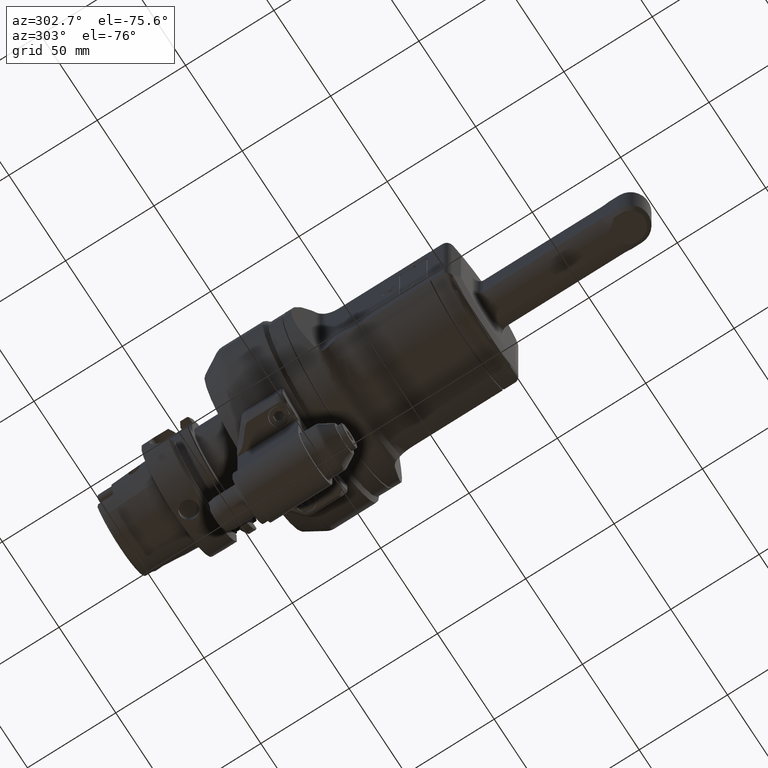
[diagram: clean part render]
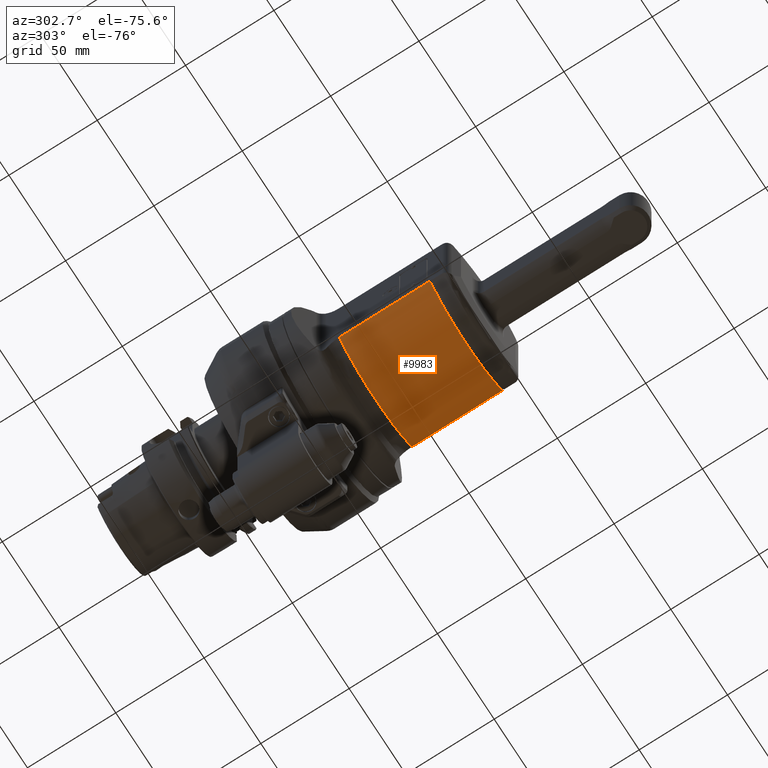
[diagram: same view with one face highlighted and labeled with its STEP entity id]
A machine part, auxiliary view. The second image highlights one B-rep face of the part: STEP entity #9983.
In plain terms, the highlighted cylindrical surface (partial cylindrical patch) has radius 42.5 mm, axis along (0, -1, 0).
Its self-contained STEP definition (entity closure, byte-faithful):
#1305=FACE_OUTER_BOUND('',#1933,.T.);
#1933=EDGE_LOOP('',(#8740,#8741,#8742,#8743,#8744,#8745,#8746));
#2422=CIRCLE('',#11000,51.8413641368644);
#2423=CIRCLE('',#11002,51.8413641367197);
#2438=CIRCLE('',#11031,42.5);
#2439=CIRCLE('',#11033,42.5);
#3226=LINE('',#58861,#3898);
#3236=LINE('',#58906,#3908);
#3240=LINE('',#58918,#3912);
#3898=VECTOR('',#13279,51.26935071414);
#3908=VECTOR('',#13319,6.2);
#3912=VECTOR('',#13333,44.46935112619);
#4801=VERTEX_POINT('',#58847);
#4802=VERTEX_POINT('',#58860);
#4821=VERTEX_POINT('',#58903);
#4822=VERTEX_POINT('',#58905);
#4823=VERTEX_POINT('',#58909);
#4824=VERTEX_POINT('',#58913);
#4825=VERTEX_POINT('',#58917);
#6125=EDGE_CURVE('',#4802,#4801,#3226,.T.);
#6148=EDGE_CURVE('',#4822,#4821,#3236,.T.);
#6150=EDGE_CURVE('',#4822,#4823,#2422,.T.);
#6152=EDGE_CURVE('',#4823,#4824,#2423,.T.);
#6154=EDGE_CURVE('',#4825,#4824,#3240,.T.);
#6195=EDGE_CURVE('',#4825,#4801,#2438,.T.);
#6196=EDGE_CURVE('',#4802,#4821,#2439,.T.);
#8740=ORIENTED_EDGE('',*,*,#6148,.T.);
#8741=ORIENTED_EDGE('',*,*,#6196,.F.);
#8742=ORIENTED_EDGE('',*,*,#6125,.T.);
#8743=ORIENTED_EDGE('',*,*,#6195,.F.);
#8744=ORIENTED_EDGE('',*,*,#6154,.T.);
#8745=ORIENTED_EDGE('',*,*,#6152,.F.);
#8746=ORIENTED_EDGE('',*,*,#6150,.F.);
#9507=CYLINDRICAL_SURFACE('',#11032,42.5);
#9983=ADVANCED_FACE('',(#1305),#9507,.T.);
#11000=AXIS2_PLACEMENT_3D('',#58910,#13323,#13324);
#11002=AXIS2_PLACEMENT_3D('',#58914,#13328,#13329);
#11031=AXIS2_PLACEMENT_3D('',#59137,#13396,#13397);
#11032=AXIS2_PLACEMENT_3D('',#59138,#13398,#13399);
#11033=AXIS2_PLACEMENT_3D('',#59139,#13400,#13401);
#13279=DIRECTION('',(-1.,3.473462719081E-9,3.035885849564E-9));
#13319=DIRECTION('',(1.,0.,0.));
#13323=DIRECTION('center_axis',(-0.707103671023875,5.49544867779151E-6,
0.707109891314186));
#13324=DIRECTION('ref_axis',(0.438957611127409,0.783990542193052,0.438947656771469));
#13328=DIRECTION('center_axis',(0.707103671021956,5.49545211017132E-6,0.707109891316105));
#13329=DIRECTION('ref_axis',(-0.444744495889397,0.77744036488246,0.444734541527318));
#13333=DIRECTION('',(1.,0.,0.));
#13396=DIRECTION('center_axis',(-1.,0.,0.));
#13397=DIRECTION('ref_axis',(0.,0.658087824515174,0.75294117647057));
#13398=DIRECTION('center_axis',(1.,0.,0.));
#13399=DIRECTION('ref_axis',(0.,1.,-3.61237605350076E-9));
#13400=DIRECTION('center_axis',(1.,0.,0.));
#13401=DIRECTION('ref_axis',(0.,0.658087824515174,-0.75294117647057));
#58847=CARTESIAN_POINT('',(17.23064887381,27.96873254189,-32.));
#58860=CARTESIAN_POINT('',(68.499999958775,27.9687323282249,-32.0000002221204));
#58861=CARTESIAN_POINT('',(68.49999958795,27.96873236381,-32.00000015565));
#58903=CARTESIAN_POINT('',(68.5,27.96873254189,32.));
#58905=CARTESIAN_POINT('',(62.3,27.96873254189,32.));
#58906=CARTESIAN_POINT('',(62.3,27.96873254189,32.));
#58909=CARTESIAN_POINT('',(62.,28.30830266901,31.7));
#58910=CARTESIAN_POINT('Origin',(39.2438386408959,-12.33483650868,8.94435468828448));
#58913=CARTESIAN_POINT('',(61.7,27.96873254189,32.));
#58914=CARTESIAN_POINT('Origin',(84.756161359204,-12.3348365085641,8.94435468850721));
#58917=CARTESIAN_POINT('',(17.23064887381,27.96873254189,32.));
#58918=CARTESIAN_POINT('',(17.23064887381,27.96873254189,32.));
#59137=CARTESIAN_POINT('Origin',(17.23064887381,0.,0.));
#59138=CARTESIAN_POINT('Origin',(22.25229287192,0.,0.));
#59139=CARTESIAN_POINT('Origin',(68.5,0.,0.));